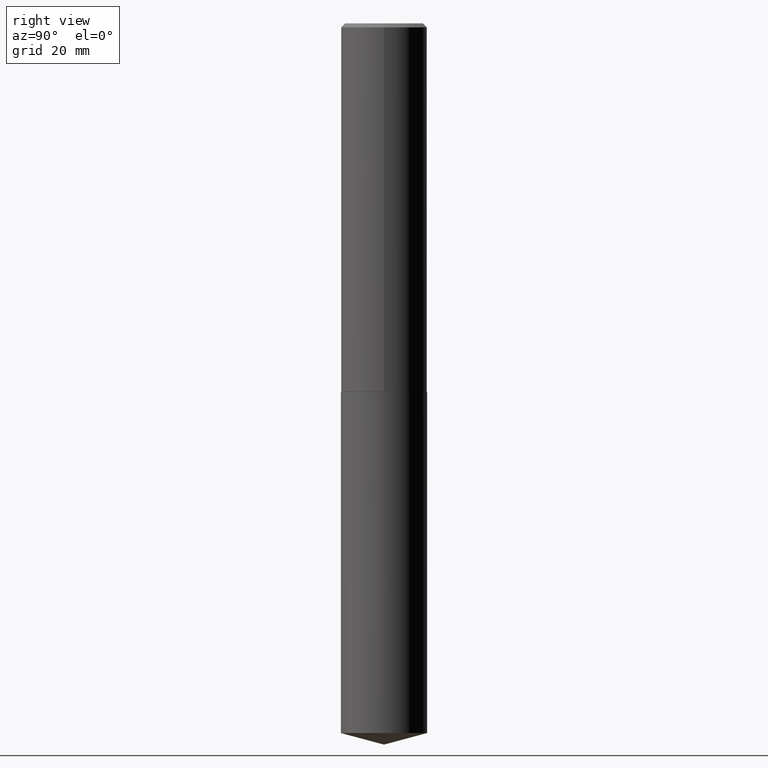
[diagram: clean part render]
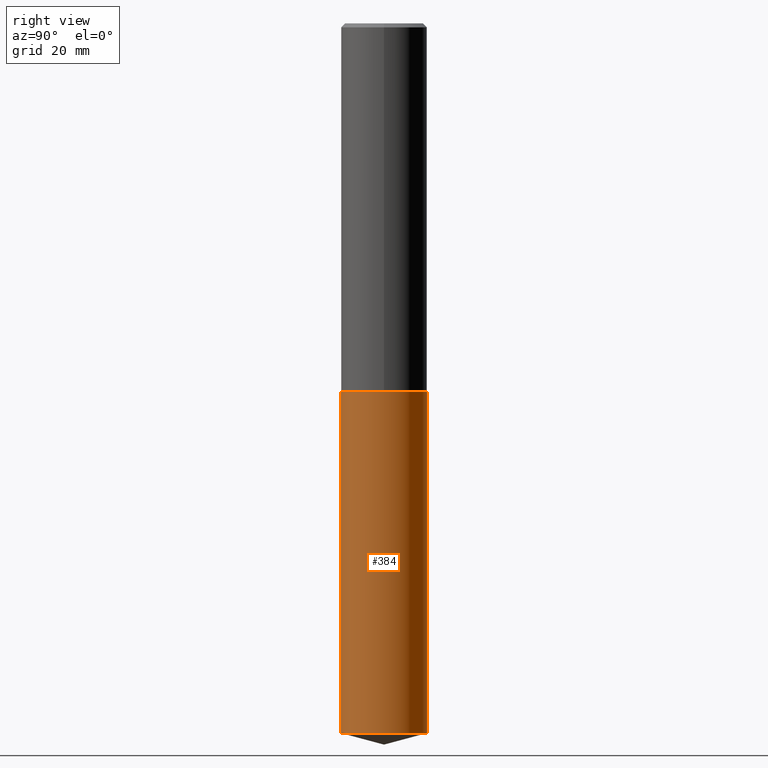
[diagram: same view with one face highlighted and labeled with its STEP entity id]
A machine part, right view. The second image highlights one B-rep face of the part: STEP entity #384.
In plain terms, the highlighted cylindrical surface (partial cylindrical patch) has radius 8.7312 mm, axis along (-0, 0, 1).
Its self-contained STEP definition (entity closure, byte-faithful):
#1 = CARTESIAN_POINT ( 'NONE',  ( -2.400393420454582001E-15, -0.3437500000000102141, -2.937499999999998224 ) ) ;
#3 = CARTESIAN_POINT ( 'NONE',  ( 7.183564618168836511E-29, -1.025622643285173815E-14, -2.937499999999999556 ) ) ;
#13 = AXIS2_PLACEMENT_3D ( 'NONE', #367, #104, #35 ) ;
#35 = DIRECTION ( 'NONE',  ( -6.982962677686265922E-15, -1.000000000000000000, 3.178877665354778874E-15 ) ) ;
#42 = DIRECTION ( 'NONE',  ( -6.982962677686265922E-15, -1.000000000000000000, 3.178877665354778874E-15 ) ) ;
#44 = EDGE_CURVE ( 'NONE', #153, #353, #65, .T. ) ;
#65 = LINE ( 'NONE', #227, #267 ) ;
#86 = VERTEX_POINT ( 'NONE', #339 ) ;
#95 = LINE ( 'NONE', #1, #190 ) ;
#98 = CIRCLE ( 'NONE', #323, 0.3437500000000000000 ) ;
#104 = DIRECTION ( 'NONE',  ( -2.445828463241445570E-29, 3.490966289468102925E-15, 1.000000000000000000 ) ) ;
#116 = EDGE_CURVE ( 'NONE', #86, #153, #98, .T. ) ;
#134 = DIRECTION ( 'NONE',  ( -2.445828463241445851E-29, 3.490966289468102925E-15, 1.000000000000000000 ) ) ;
#140 = CYLINDRICAL_SURFACE ( 'NONE', #342, 0.3437500000000000000 ) ;
#153 = VERTEX_POINT ( 'NONE', #221 ) ;
#165 = DIRECTION ( 'NONE',  ( -2.445828463241445570E-29, 3.490966289468102925E-15, 1.000000000000000000 ) ) ;
#169 = CARTESIAN_POINT ( 'NONE',  ( 1.383717794050239088E-28, -1.975302482264516971E-14, -5.657892465101803658 ) ) ;
#181 = ORIENTED_EDGE ( 'NONE', *, *, #236, .F. ) ;
#190 = VECTOR ( 'NONE', #134, 39.37007874015748143 ) ;
#206 = CARTESIAN_POINT ( 'NONE',  ( -2.400393420454582001E-15, -0.3437500000000102141, -2.937499999999998224 ) ) ;
#218 = ORIENTED_EDGE ( 'NONE', *, *, #116, .T. ) ;
#221 = CARTESIAN_POINT ( 'NONE',  ( 2.442490654175483228E-15, 0.3437499999999802935, -5.657892465101804547 ) ) ;
#224 = CARTESIAN_POINT ( 'NONE',  ( 2.442490654175483228E-15, 0.3437499999999897304, -2.937500000000000444 ) ) ;
#227 = CARTESIAN_POINT ( 'NONE',  ( 2.442490654175415781E-15, 0.3437499999999897304, -2.937500000000000444 ) ) ;
#236 = EDGE_CURVE ( 'NONE', #86, #352, #95, .T. ) ;
#244 = EDGE_CURVE ( 'NONE', #352, #353, #356, .T. ) ;
#267 = VECTOR ( 'NONE', #341, 39.37007874015748143 ) ;
#271 = EDGE_LOOP ( 'NONE', ( #218, #359, #386, #181 ) ) ;
#283 = DIRECTION ( 'NONE',  ( -2.445828463241445570E-29, 3.490966289468102925E-15, 1.000000000000000000 ) ) ;
#284 = DIRECTION ( 'NONE',  ( -6.982962677686265922E-15, -1.000000000000000000, 3.178877665354778874E-15 ) ) ;
#314 = FACE_OUTER_BOUND ( 'NONE', #271, .T. ) ;
#323 = AXIS2_PLACEMENT_3D ( 'NONE', #169, #165, #284 ) ;
#339 = CARTESIAN_POINT ( 'NONE',  ( -2.400393420454516131E-15, -0.3437500000000198730, -5.657892465101801882 ) ) ;
#341 = DIRECTION ( 'NONE',  ( -2.445828463241445851E-29, 3.490966289468102925E-15, 1.000000000000000000 ) ) ;
#342 = AXIS2_PLACEMENT_3D ( 'NONE', #3, #283, #42 ) ;
#352 = VERTEX_POINT ( 'NONE', #206 ) ;
#353 = VERTEX_POINT ( 'NONE', #224 ) ;
#356 = CIRCLE ( 'NONE', #13, 0.3437500000000000000 ) ;
#359 = ORIENTED_EDGE ( 'NONE', *, *, #44, .T. ) ;
#367 = CARTESIAN_POINT ( 'NONE',  ( 7.183564618168836511E-29, -1.025622643285173815E-14, -2.937499999999999556 ) ) ;
#384 = ADVANCED_FACE ( 'NONE', ( #314 ), #140, .T. ) ;
#386 = ORIENTED_EDGE ( 'NONE', *, *, #244, .F. ) ;